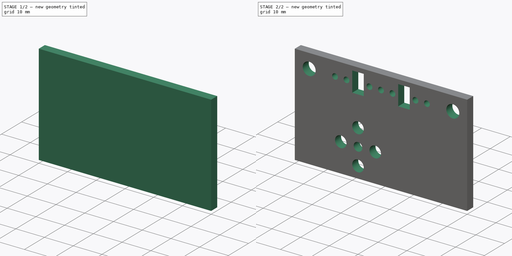
[diagram: build sequence overview — one tinted view per stage of 2, left to right]
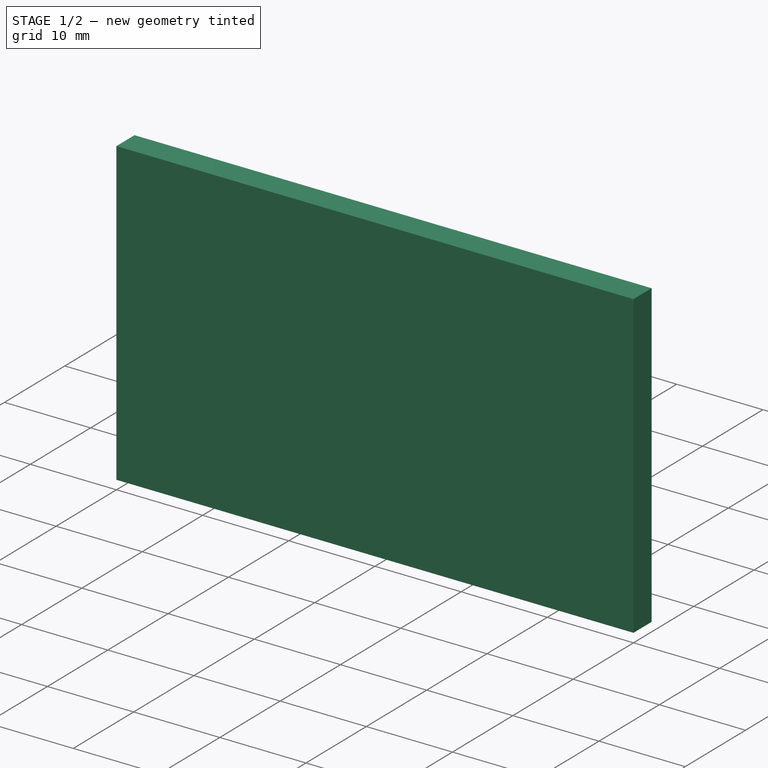
[diagram: stage 1 of 2 — iso view after this stage's code; geometry added in this stage tinted green]
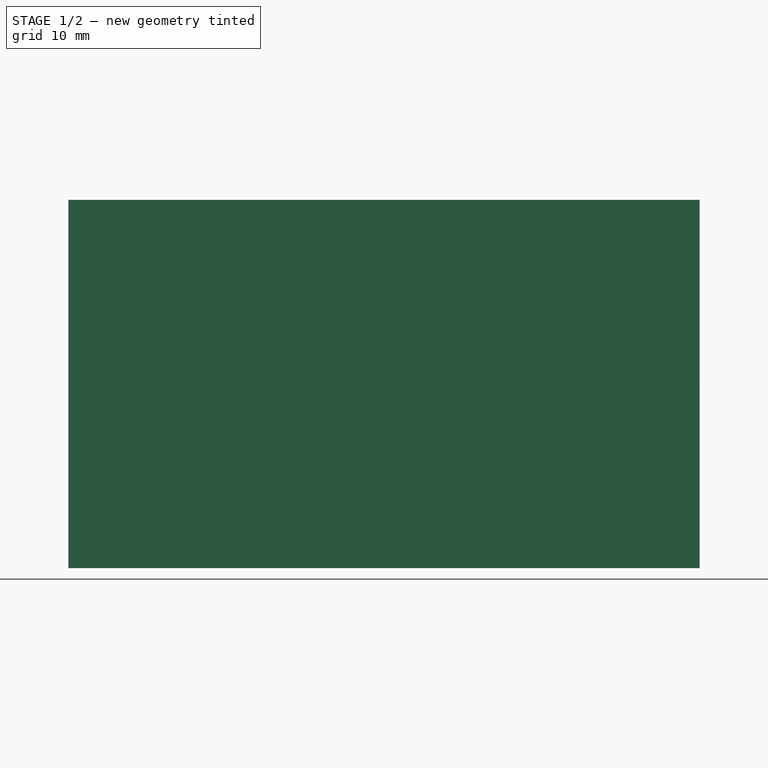
[diagram: stage 1 of 2 — front view after this stage's code; geometry added in this stage tinted green]
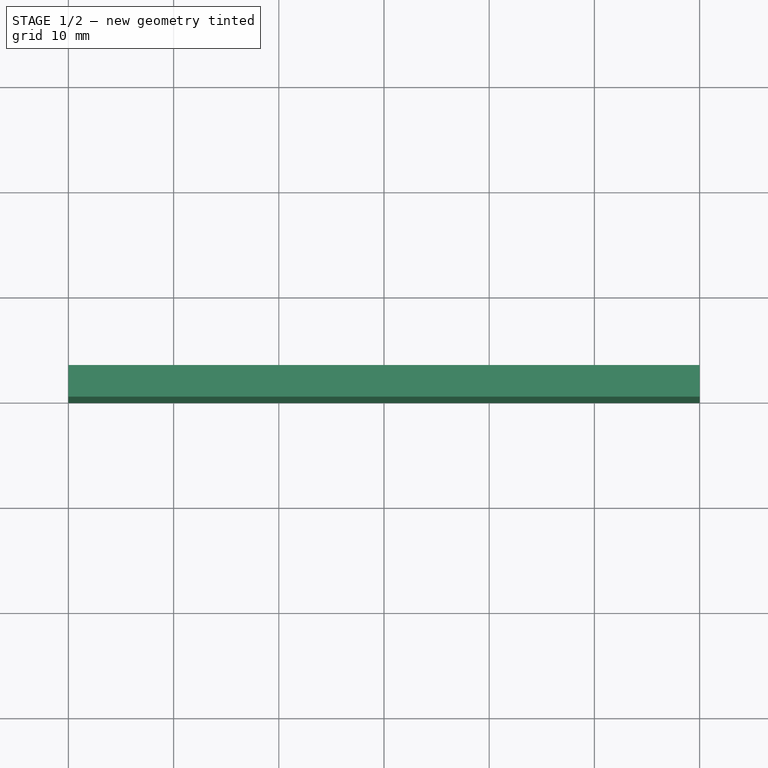
[diagram: stage 1 of 2 — top view after this stage's code; geometry added in this stage tinted green]
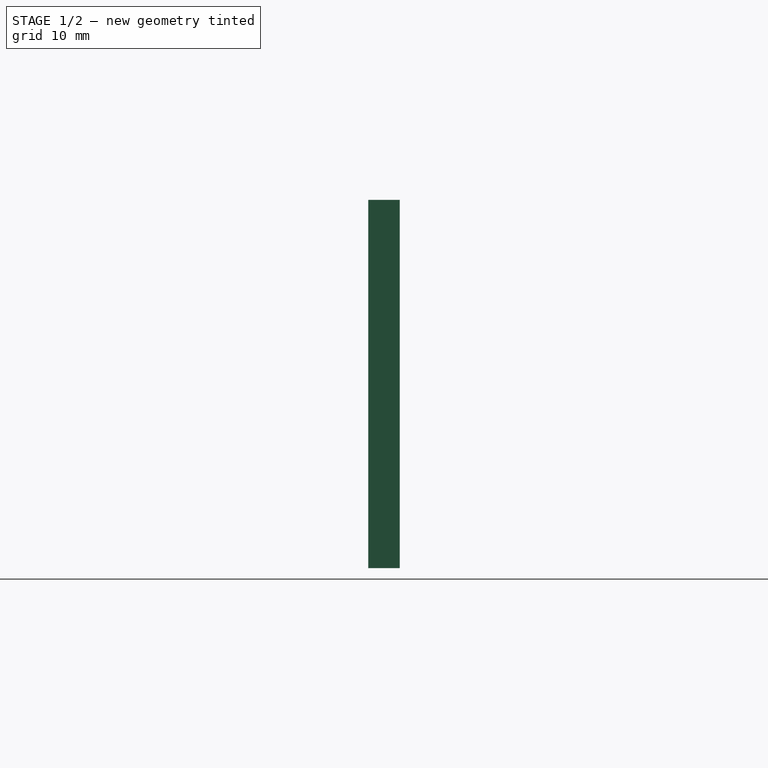
[diagram: stage 1 of 2 — right view after this stage's code; geometry added in this stage tinted green]
FCSTD DOCUMENT  (FreeCAD 0.16R6707 (Git))
Label: support pince gauche
License: All rights reserved
LicenseURL: http://en.wikipedia.org/wiki/All_rights_reserved
objects: Sketcher::SketchObject×2, PartDesign::Pad×1, PartDesign::Pocket×1
note: 6 computed .brp shape members not serialized (recipe doc carries the construction recipe); baked Part::Feature solids carry a one-line shape summary decoded from their .brp

FEATURE [Sketcher::SketchObject] Sketch
  sketch-geometry (4):
    g0: LineSegment StartX=0 StartY=0 StartZ=0 EndX=60 EndY=0 EndZ=0
    g1: LineSegment StartX=60 StartY=0 StartZ=0 EndX=60 EndY=3 EndZ=0
    g2: LineSegment StartX=60 StartY=3 StartZ=0 EndX=0 EndY=3 EndZ=0
    g3: LineSegment StartX=0 StartY=3 StartZ=0 EndX=0 EndY=0 EndZ=0
  constraints (11):
    c: Coincident(g0,g1)
    c: Coincident(g1,g2)
    c: Coincident(g2,g3)
    c: Coincident(g3,g0)
    c: Horizontal(g0)
    c: Horizontal(g2)
    c: Vertical(g1)
    c: Vertical(g3)
    c: Coincident(g0,g-1)
    c: Distance(g3) = 3
    c: Distance(g2) = 60
FEATURE [PartDesign::Pad] Pad
  Length = 35
  Length2 = 100
  Sketch = -> Sketch
  Type = 0
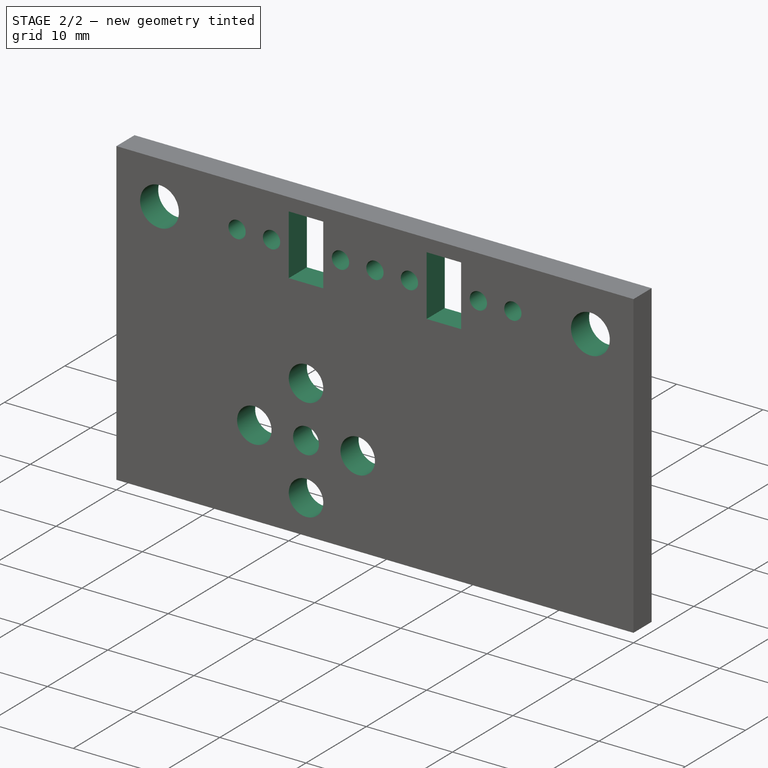
[diagram: stage 2 of 2 — iso view after this stage's code; geometry added in this stage tinted green]
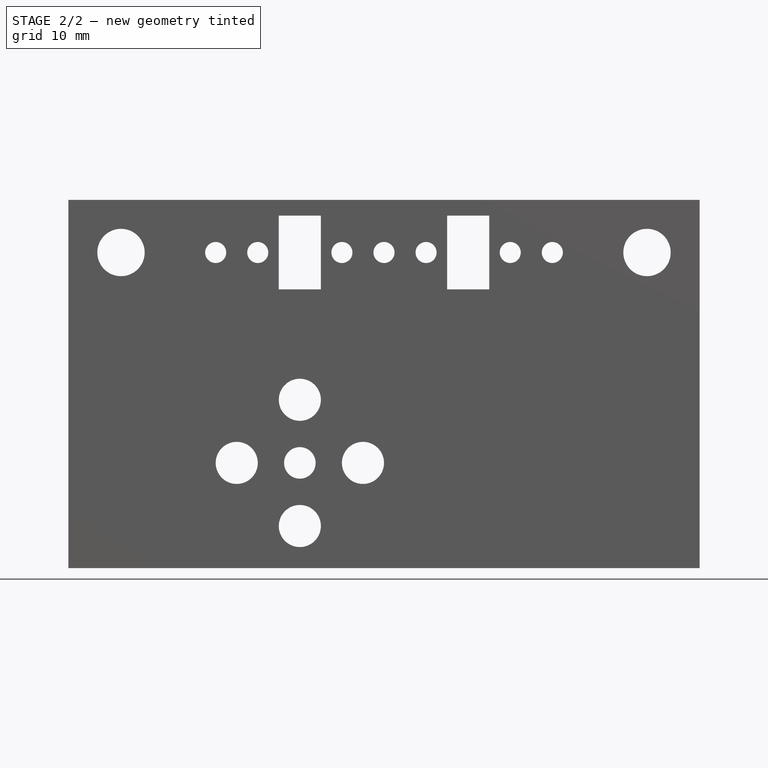
[diagram: stage 2 of 2 — front view after this stage's code; geometry added in this stage tinted green]
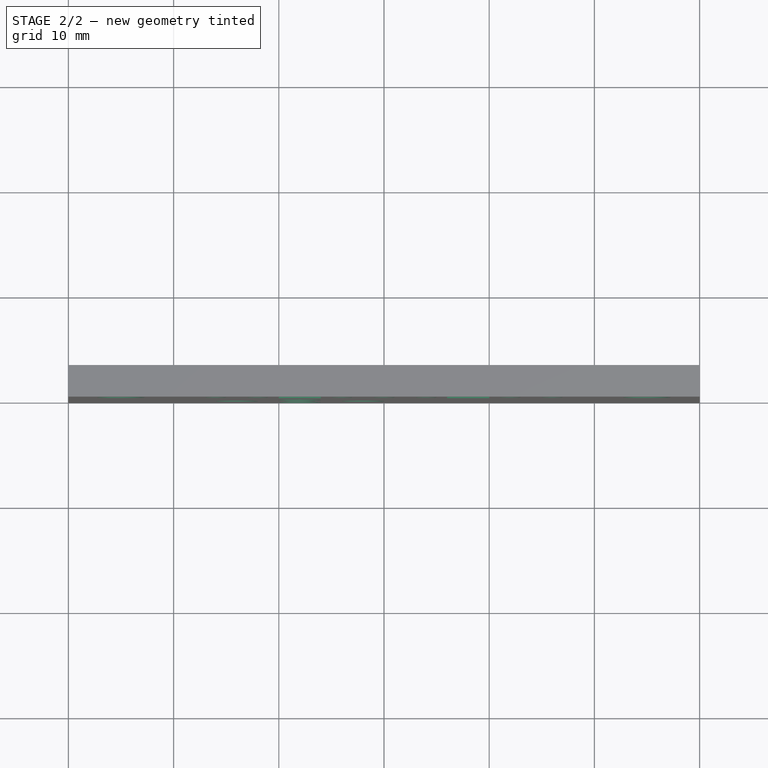
[diagram: stage 2 of 2 — top view after this stage's code; geometry added in this stage tinted green]
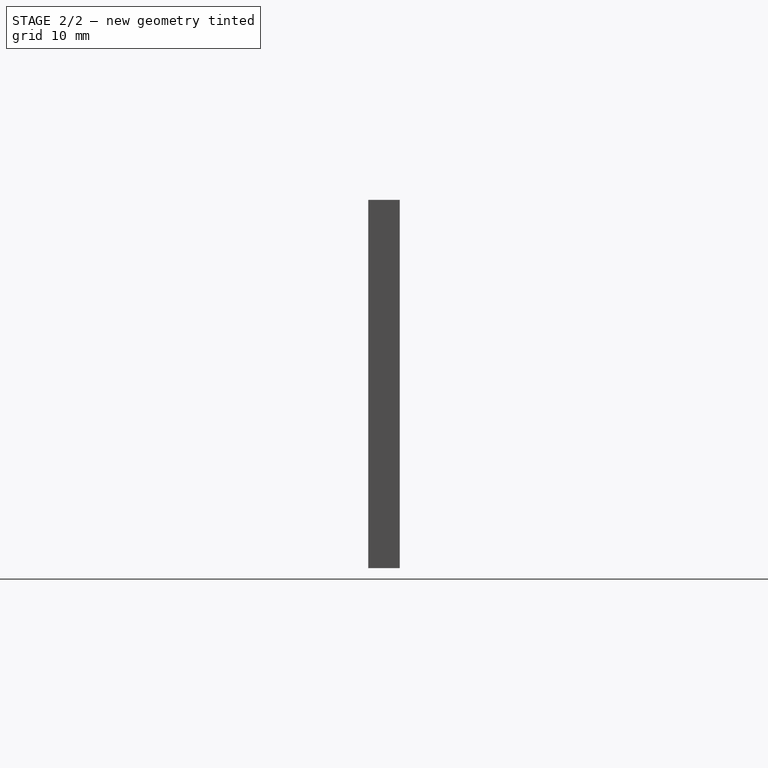
[diagram: stage 2 of 2 — right view after this stage's code; geometry added in this stage tinted green]
FEATURE [Sketcher::SketchObject] Sketch001
  Placement = pos=(0,0,0) rot=(1,0,0;1.5708rad)
  Support = -> Pad [Face1]
  sketch-geometry (39):
    g0: GeomPoint [constr] X=22 Y=10 Z=0
    g1: GeomPoint [constr] X=16 Y=10 Z=0
    g2: GeomPoint [constr] X=22 Y=16 Z=0
    g3: GeomPoint [constr] X=28 Y=10 Z=0
    g4: GeomPoint [constr] X=22 Y=4 Z=0
    g5: Circle CenterX=22 CenterY=10 CenterZ=0 NormalX=0 NormalY=0 NormalZ=1 Radius=1.5
    g6: Circle CenterX=28 CenterY=10 CenterZ=0 NormalX=0 NormalY=0 NormalZ=1 Radius=2
    g7: Circle CenterX=22 CenterY=16 CenterZ=0 NormalX=0 NormalY=0 NormalZ=1 Radius=2
    g8: Circle CenterX=16 CenterY=10 CenterZ=0 NormalX=0 NormalY=0 NormalZ=1 Radius=2
    g9: Circle CenterX=22 CenterY=4 CenterZ=0 NormalX=0 NormalY=0 NormalZ=1 Radius=2
    g10: GeomPoint [constr] X=5 Y=30 Z=0
    g11: GeomPoint [constr] X=55 Y=30 Z=0
    g12: Circle CenterX=5 CenterY=30 CenterZ=0 NormalX=0 NormalY=0 NormalZ=1 Radius=2.25
    g13: Circle CenterX=55 CenterY=30 CenterZ=0 NormalX=0 NormalY=0 NormalZ=1 Radius=2.25
    g14: GeomPoint [constr] X=30 Y=30 Z=0
    g15: GeomPoint [constr] X=24 Y=26.5 Z=0
    g16: GeomPoint [constr] X=36 Y=33.5 Z=0
    g17: LineSegment StartX=24 StartY=26.5 StartZ=0 EndX=20 EndY=26.5 EndZ=0
    g18: LineSegment StartX=20 StartY=26.5 StartZ=0 EndX=20 EndY=33.5 EndZ=0
    g19: LineSegment StartX=20 StartY=33.5 StartZ=0 EndX=24 EndY=33.5 EndZ=0
    g20: LineSegment StartX=24 StartY=33.5 StartZ=0 EndX=24 EndY=26.5 EndZ=0
    g21: LineSegment StartX=36 StartY=33.5 StartZ=0 EndX=40 EndY=33.5 EndZ=0
    g22: LineSegment StartX=40 StartY=33.5 StartZ=0 EndX=40 EndY=26.5 EndZ=0
    g23: LineSegment StartX=40 StartY=26.5 StartZ=0 EndX=36 EndY=26.5 EndZ=0
    g24: LineSegment StartX=36 StartY=26.5 StartZ=0 EndX=36 EndY=33.5 EndZ=0
    g25: GeomPoint [constr] X=26 Y=30 Z=0
    g26: GeomPoint [constr] X=30 Y=30 Z=0
    g27: GeomPoint [constr] X=34 Y=30 Z=0
    g28: GeomPoint [constr] X=42 Y=30 Z=0
    g29: GeomPoint [constr] X=46 Y=30 Z=0
    g30: GeomPoint [constr] X=18 Y=30 Z=0
    g31: GeomPoint [constr] X=14 Y=30 Z=0
    g32: Circle CenterX=14 CenterY=30 CenterZ=0 NormalX=0 NormalY=0 NormalZ=1 Radius=1
    g33: Circle CenterX=18 CenterY=30 CenterZ=0 NormalX=0 NormalY=0 NormalZ=1 Radius=1
    g34: Circle CenterX=26 CenterY=30 CenterZ=0 NormalX=0 NormalY=0 NormalZ=1 Radius=1
    g35: Circle CenterX=30 CenterY=30 CenterZ=0 NormalX=0 NormalY=0 NormalZ=1 Radius=1
    g36: Circle CenterX=34 CenterY=30 CenterZ=0 NormalX=0 NormalY=0 NormalZ=1 Radius=1
    g37: Circle CenterX=42 CenterY=30 CenterZ=0 NormalX=0 NormalY=0 NormalZ=1 Radius=1
    g38: Circle CenterX=46 CenterY=30 CenterZ=0 NormalX=0 NormalY=0 NormalZ=1 Radius=1
  constraints (84):
    c: DistanceX(g0) = 22
    c: DistanceY(g0) = 10
    c: DistanceX(g4,g0) = 0
    c: DistanceY(g4,g0) = 6
    c: DistanceY(g3,g0) = 0
    c: DistanceX(g0,g3) = 6
    c: DistanceX(g0,g2) = 0
    c: DistanceY(g0,g2) = 6
    c: DistanceY(g0,g1) = 0
    c: DistanceX(g1,g0) = 6
    c: Coincident(g5,g0)
    c: Coincident(g6,g3)
    c: Coincident(g7,g2)
    c: Coincident(g8,g1)
    c: Coincident(g9,g4)
    c: Radius(g6) = 2
    c: Radius(g7) = 2
    c: Radius(g8) = 2
    c: Radius(g9) = 2
    c: Radius(g5) = 1.5
    c: DistanceX(g10,g11) = 50
    c: DistanceY(g10) = 30
    c: DistanceY(g11,g10) = 0
    c: DistanceX(g10) = 5
    c: Coincident(g12,g10)
    c: Coincident(g13,g11)
    c: Radius(g12) = 2.25
    c: Radius(g13) = 2.25
    c: DistanceY(g14,g10) = 0
    c: DistanceX(g10,g14) = 25
    c: DistanceX(g15,g14) = 6
    c: DistanceY(g15,g14) = 3.5
    c: Coincident(g17,g18)
    c: Coincident(g18,g19)
    c: Coincident(g19,g20)
    c: Coincident(g20,g17)
    c: Horizontal(g17)
    c: Horizontal(g19)
    c: Vertical(g18)
    c: Vertical(g20)
    c: Coincident(g17,g15)
    c: Distance(g18) = 7
    c: Distance(g19) = 4
    c: DistanceY(g14,g16) = 3.5
    c: DistanceX(g14,g16) = 6
    c: Coincident(g21,g22)
    c: Coincident(g22,g23)
    c: Coincident(g23,g24)
    c: Coincident(g24,g21)
    c: Horizontal(g21)
    c: Horizontal(g23)
    c: Vertical(g22)
    c: Vertical(g24)
    c: Coincident(g21,g16)
    c: Distance(g21) = 4
    c: Distance(g22) = 7
    c: DistanceX(g25,g26) = 4
    c: DistanceY(g25,g26) = 0
    c: DistanceY(g30,g31) = 0
    c: DistanceX(g31,g30) = 4
    c: DistanceY(g28,g29) = 0
    c: DistanceX(g28,g29) = 4
    c: DistanceX(g30,g18) = 2
    c: DistanceX(g19,g25) = 2
    c: DistanceX(g16,g27) = -2
    c: DistanceX(g28,g21) = -2
    c: DistanceY(g14,g30) = 0
    c: DistanceY(g14,g25) = 0
    c: DistanceY(g14,g27) = 0
    c: DistanceY(g14,g28) = 0
    c: Coincident(g32,g31)
    c: Coincident(g33,g30)
    c: Coincident(g34,g25)
    c: Coincident(g35,g14)
    c: Coincident(g36,g27)
    c: Coincident(g37,g28)
    c: Coincident(g38,g29)
    c: Radius(g38) = 1
    c: Equal(g38,g37)
    c: Equal(g38,g36)
    c: Equal(g38,g35)
    c: Equal(g38,g34)
    c: Equal(g38,g33)
    c: Equal(g38,g32)
FEATURE [PartDesign::Pocket] Pocket
  Length = 3
  Sketch = -> Sketch001
  Type = 0
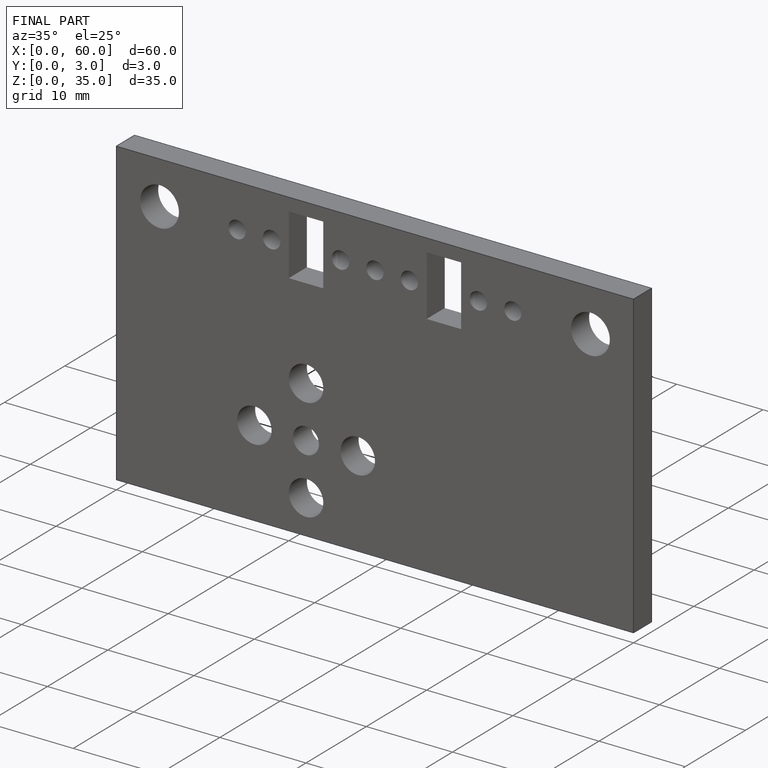
[diagram: finished part — iso view with bounding-box wireframe]
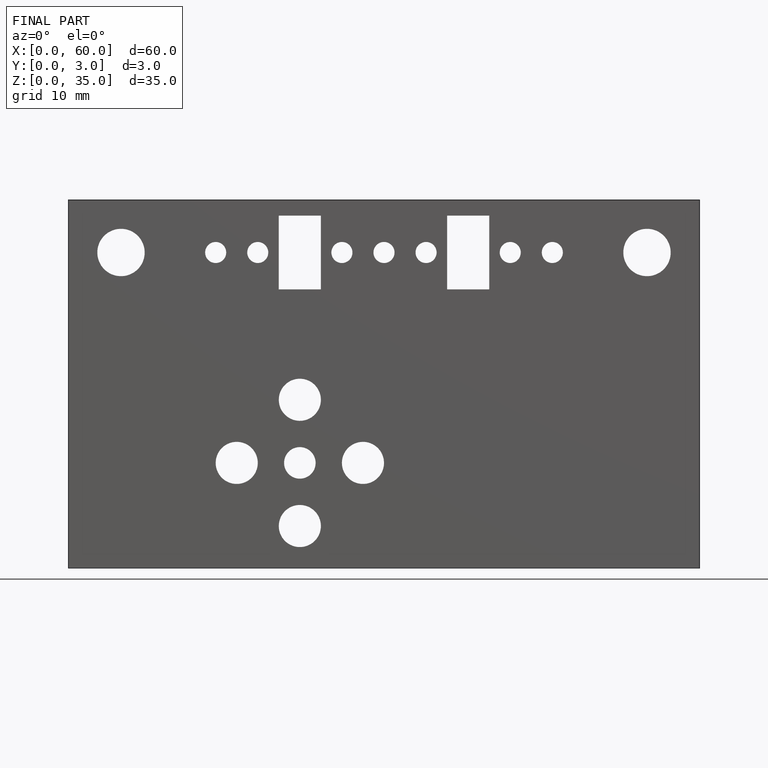
[diagram: finished part — front view with bounding-box wireframe]
